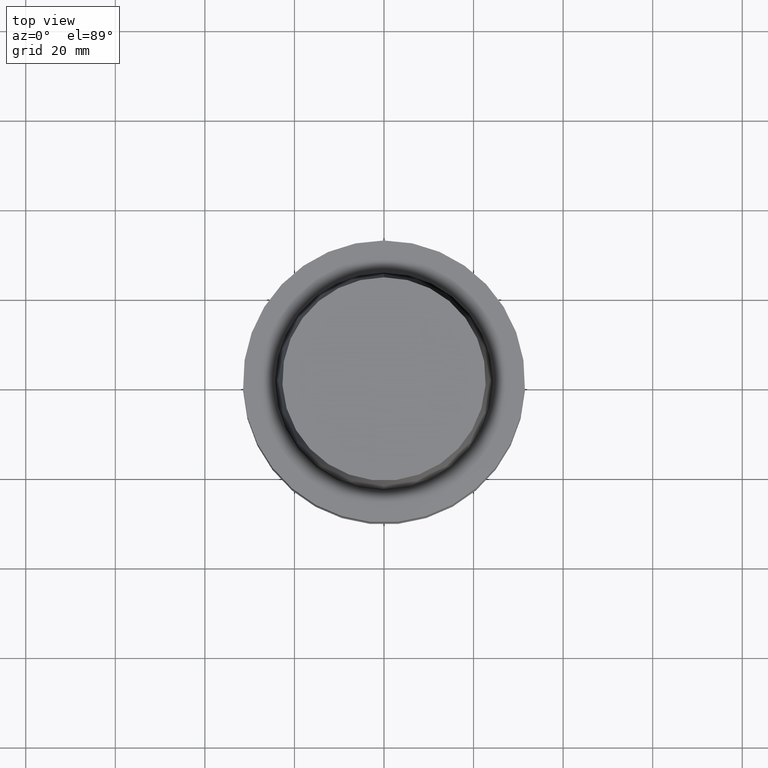
[diagram: clean part render]
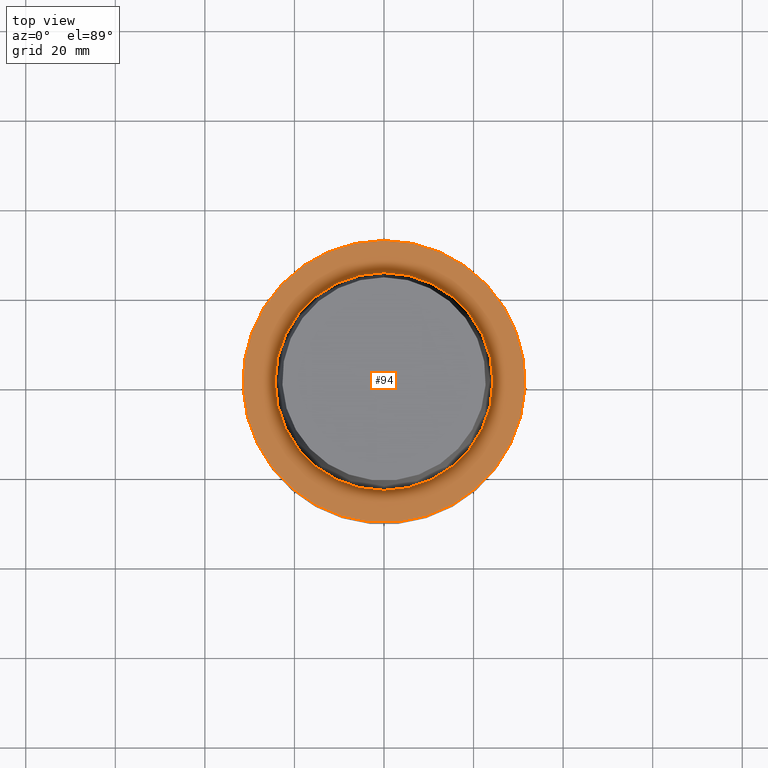
[diagram: same view with one face highlighted and labeled with its STEP entity id]
A machine part, top view. The second image highlights one B-rep face of the part: STEP entity #94.
In plain terms, the highlighted planar face has unit normal (-0, -0, 1).
Its self-contained STEP definition (entity closure, byte-faithful):
#94=ADVANCED_FACE('',(#151,#152),#153,.T.);
#151=FACE_BOUND('',#209,.T.);
#152=FACE_OUTER_BOUND('',#210,.T.);
#153=PLANE('',#211);
#209=EDGE_LOOP('',(#305));
#210=EDGE_LOOP('',(#306));
#211=AXIS2_PLACEMENT_3D('',#307,#308,#309);
#305=ORIENTED_EDGE('',*,*,#322,.T.);
#306=ORIENTED_EDGE('',*,*,#324,.F.);
#307=CARTESIAN_POINT('',(-3.40924878510528E-031,27.907500000104,3.36768305473321E-015));
#308=DIRECTION('',(-6.12323399573677E-017,-1.08546795432774E-016,1.0));
#309=DIRECTION('',(1.14737270099915E-032,-1.0,-1.08546795432774E-016));
#322=EDGE_CURVE('',#353,#353,#354,.T.);
#324=EDGE_CURVE('',#357,#357,#358,.T.);
#353=VERTEX_POINT('',#391);
#354=CIRCLE('',#392,24.3150000002079);
#357=VERTEX_POINT('',#395);
#358=CIRCLE('',#396,31.5);
#391=CARTESIAN_POINT('',(-2.99705514228327E-031,24.3150000002079,2.97772869215225E-015));
#392=AXIS2_PLACEMENT_3D('',#441,#442,#443);
#395=CARTESIAN_POINT('',(-3.8214424279273E-031,31.5,3.75763741731416E-015));
#396=AXIS2_PLACEMENT_3D('',#447,#448,#449);
#441=CARTESIAN_POINT('',(0.0,0.0,0.0));
#442=DIRECTION('',(6.12323399573677E-017,1.08546795432774E-016,-1.0));
#443=DIRECTION('',(-1.14737270099915E-032,1.0,1.08546795432774E-016));
#447=CARTESIAN_POINT('',(6.12323399573677E-033,1.22464679914735E-032,-1.0E-016));
#448=DIRECTION('',(6.12323399573677E-017,1.22464679914735E-016,-1.0));
#449=DIRECTION('',(-1.23259516440783E-032,1.0,1.22464679914735E-016));